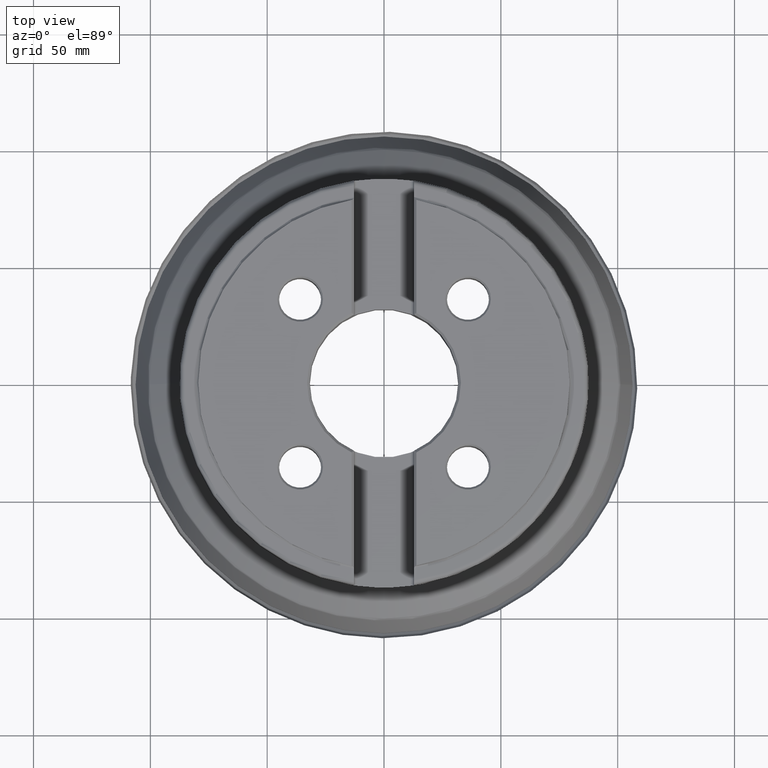
[diagram: clean part render]
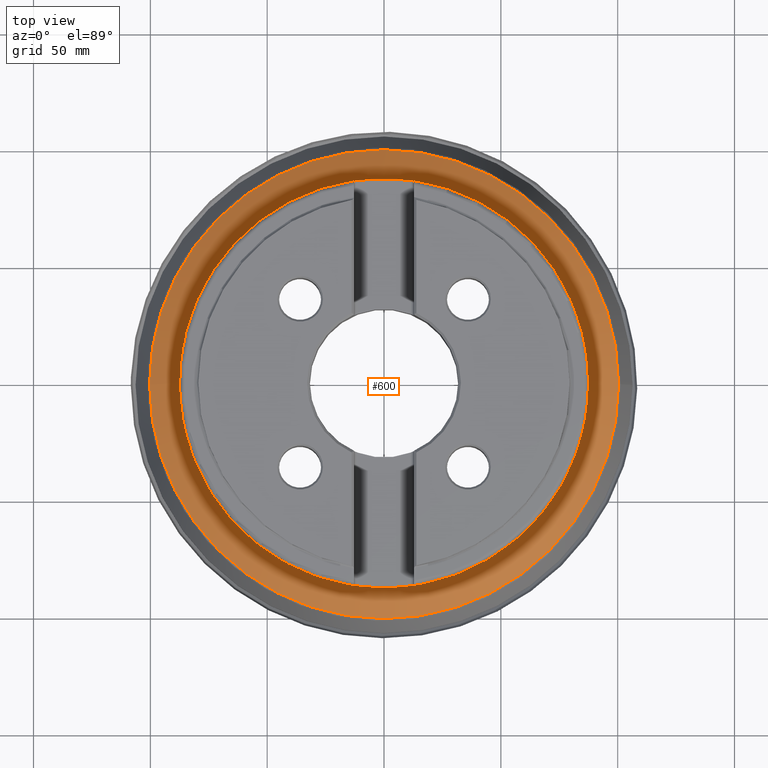
[diagram: same view with one face highlighted and labeled with its STEP entity id]
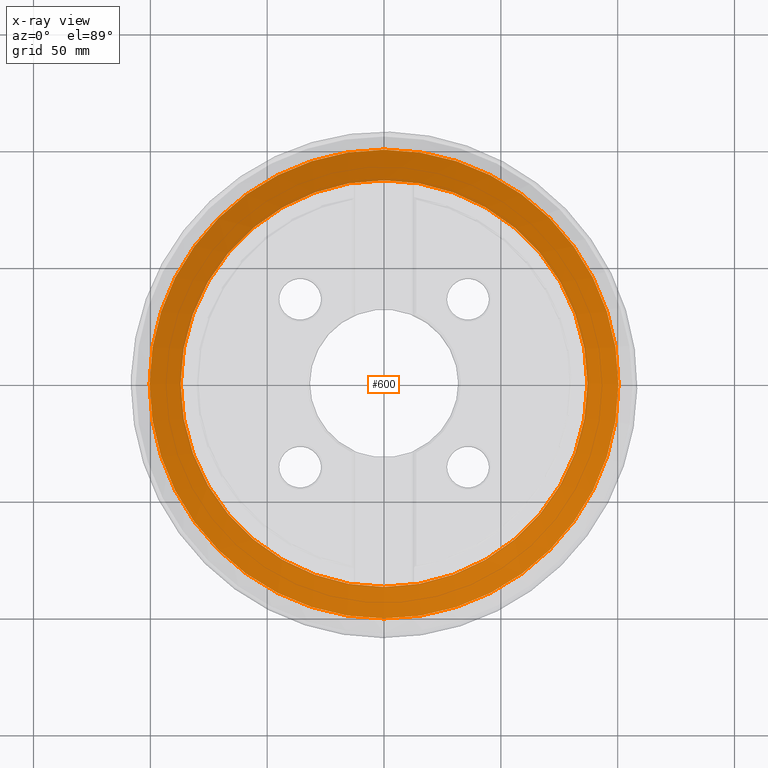
[diagram: x-ray of the same camera — body ghosted, the highlighted face saturated]
A machine part, top view. The second image highlights one B-rep face of the part: STEP entity #600.
The next image is the same camera in x-ray: the body ghosted, the highlighted face saturated — about 0% of this face is hidden behind the body in this view.
In plain terms, the highlighted conical surface has half-angle 49.655 deg.
Its self-contained STEP definition (entity closure, byte-faithful):
#206=CONICAL_SURFACE('',#2646,86.5,49.6545576407161);
#600=ADVANCED_FACE('',(#802,#803),#206,.T.);
#802=FACE_BOUND('',#960,.T.);
#803=FACE_BOUND('',#961,.T.);
#960=EDGE_LOOP('',(#1261));
#961=EDGE_LOOP('',(#1262));
#1261=ORIENTED_EDGE('',*,*,#2085,.T.);
#1262=ORIENTED_EDGE('',*,*,#2086,.T.);
#1857=VERTEX_POINT('',#4197);
#1858=VERTEX_POINT('',#4199);
#2085=EDGE_CURVE('',#1857,#1857,#2360,.T.);
#2086=EDGE_CURVE('',#1858,#1858,#2361,.T.);
#2360=CIRCLE('',#2644,87.0289083060971);
#2361=CIRCLE('',#2645,100.339263985657);
#2644=AXIS2_PLACEMENT_3D('',#4196,#3026,#3027);
#2645=AXIS2_PLACEMENT_3D('',#4198,#3028,#3029);
#2646=AXIS2_PLACEMENT_3D('',#4200,#3030,#3031);
#3026=DIRECTION('',(-1.17145536458252E-15,0.,-1.));
#3027=DIRECTION('',(-1.,0.,1.19596362386309E-15));
#3028=DIRECTION('',(1.17145536458252E-15,0.,1.));
#3029=DIRECTION('',(1.,0.,-1.17562349653357E-15));
#3030=DIRECTION('',(-1.17145536458252E-15,0.,-1.));
#3031=DIRECTION('',(-1.,0.,1.12558330587374E-15));
#4196=CARTESIAN_POINT('',(4.45747335018224E-14,0.,38.0507314657334));
#4197=CARTESIAN_POINT('',(-87.0289083060971,0.,38.0507314657335));
#4198=CARTESIAN_POINT('',(3.13300671706526E-14,0.,26.744567584799));
#4199=CARTESIAN_POINT('',(100.339263985657,0.,26.7445675847989));
#4200=CARTESIAN_POINT('',(4.5101031536427E-14,0.,38.4999999999999));